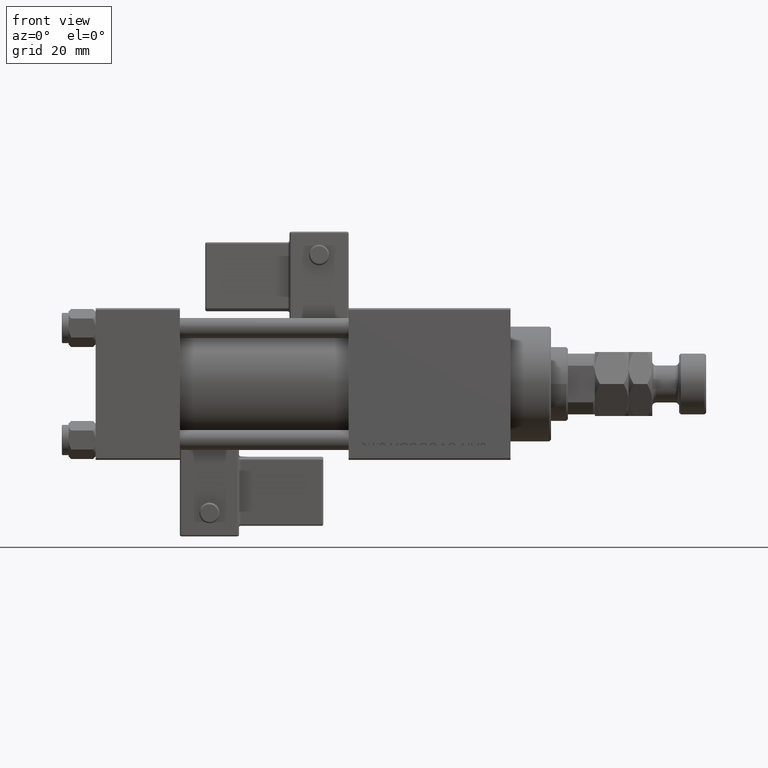
[diagram: clean part render]
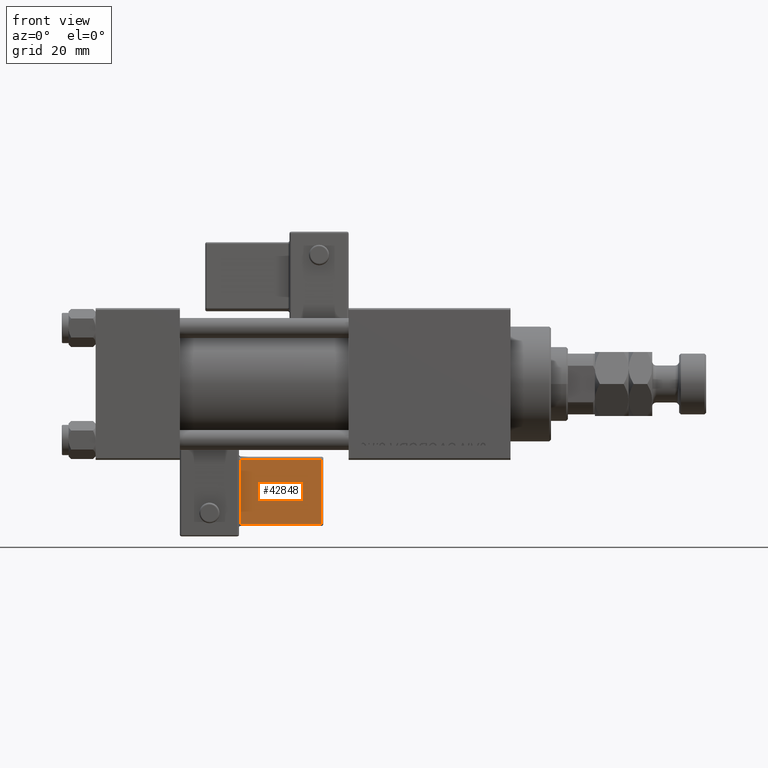
[diagram: same view with one face highlighted and labeled with its STEP entity id]
A machine part, front view. The second image highlights one B-rep face of the part: STEP entity #42848.
In plain terms, the highlighted planar face has unit normal (0, 0.9994, 0.0353).
Its self-contained STEP definition (entity closure, byte-faithful):
#605 = FACE_OUTER_BOUND ( 'NONE', #21999, .T. ) ;
#7928 = CARTESIAN_POINT ( 'NONE',  ( 33.24999999999999289, -30.25000000000000000, 22.00000000000000355 ) ) ;
#10525 = VERTEX_POINT ( 'NONE', #39232 ) ;
#10584 = DIRECTION ( 'NONE',  ( 1.334402673828313339E-16, 0.000000000000000000, -1.000000000000000000 ) ) ;
#12701 = CARTESIAN_POINT ( 'NONE',  ( 33.75000000000000000, -30.25000000000000000, 22.00000000000000355 ) ) ;
#13456 = EDGE_CURVE ( 'NONE', #37516, #53362, #26504, .T. ) ;
#14237 = VECTOR ( 'NONE', #10584, 1000.000000000000000 ) ;
#18146 = CARTESIAN_POINT ( 'NONE',  ( 33.75000000000000000, -30.25000000000000000, 2.500000000000005773 ) ) ;
#19111 = CARTESIAN_POINT ( 'NONE',  ( 33.75000000000000000, -30.25000000000000000, 21.50000000000000000 ) ) ;
#21470 = CARTESIAN_POINT ( 'NONE',  ( 9.250000000000001776, -30.25000000000000000, 21.50000000000000000 ) ) ;
#21999 = EDGE_LOOP ( 'NONE', ( #51159, #31107, #29889, #36636 ) ) ;
#26348 = DIRECTION ( 'NONE',  ( 1.000000000000000000, -0.000000000000000000, 1.334402673828313339E-16 ) ) ;
#26504 = LINE ( 'NONE', #19111, #40429 ) ;
#28643 = CARTESIAN_POINT ( 'NONE',  ( 33.24999999999999289, -30.25000000000000000, 2.500000000000006661 ) ) ;
#29889 = ORIENTED_EDGE ( 'NONE', *, *, #31740, .T. ) ;
#29963 = PLANE ( 'NONE',  #34982 ) ;
#30294 = VERTEX_POINT ( 'NONE', #28643 ) ;
#31107 = ORIENTED_EDGE ( 'NONE', *, *, #43653, .T. ) ;
#31292 = VECTOR ( 'NONE', #41403, 1000.000000000000000 ) ;
#31705 = LINE ( 'NONE', #35266, #14237 ) ;
#31740 = EDGE_CURVE ( 'NONE', #30294, #37516, #37006, .T. ) ;
#33536 = DIRECTION ( 'NONE',  ( -0.000000000000000000, 1.000000000000000000, 0.000000000000000000 ) ) ;
#34982 = AXIS2_PLACEMENT_3D ( 'NONE', #12701, #33536, #46703 ) ;
#35266 = CARTESIAN_POINT ( 'NONE',  ( 9.250000000000005329, -30.25000000000000000, 2.000000000000001776 ) ) ;
#35532 = DIRECTION ( 'NONE',  ( -1.000000000000000000, 0.000000000000000000, -1.334402673828313339E-16 ) ) ;
#36636 = ORIENTED_EDGE ( 'NONE', *, *, #13456, .T. ) ;
#37006 = LINE ( 'NONE', #7928, #31292 ) ;
#37516 = VERTEX_POINT ( 'NONE', #47854 ) ;
#39232 = CARTESIAN_POINT ( 'NONE',  ( 9.250000000000005329, -30.25000000000000000, 2.500000000000003109 ) ) ;
#40429 = VECTOR ( 'NONE', #35532, 1000.000000000000000 ) ;
#41151 = VECTOR ( 'NONE', #26348, 1000.000000000000000 ) ;
#41403 = DIRECTION ( 'NONE',  ( -1.734723475976807341E-16, -0.000000000000000000, 1.000000000000000000 ) ) ;
#42848 = ADVANCED_FACE ( 'NONE', ( #605 ), #29963, .F. ) ;
#43653 = EDGE_CURVE ( 'NONE', #10525, #30294, #47205, .T. ) ;
#46703 = DIRECTION ( 'NONE',  ( 0.000000000000000000, -0.000000000000000000, 1.000000000000000000 ) ) ;
#47205 = LINE ( 'NONE', #18146, #41151 ) ;
#47854 = CARTESIAN_POINT ( 'NONE',  ( 33.24999999999999289, -30.25000000000000000, 21.50000000000000000 ) ) ;
#51159 = ORIENTED_EDGE ( 'NONE', *, *, #52860, .T. ) ;
#52860 = EDGE_CURVE ( 'NONE', #53362, #10525, #31705, .T. ) ;
#53362 = VERTEX_POINT ( 'NONE', #21470 ) ;